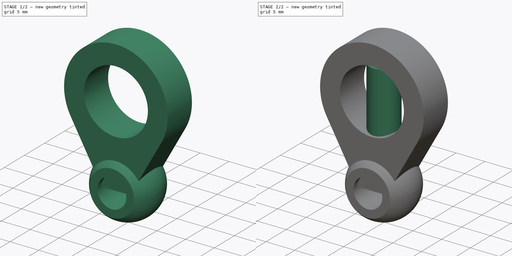
[diagram: build sequence overview — one tinted view per stage of 2, left to right]
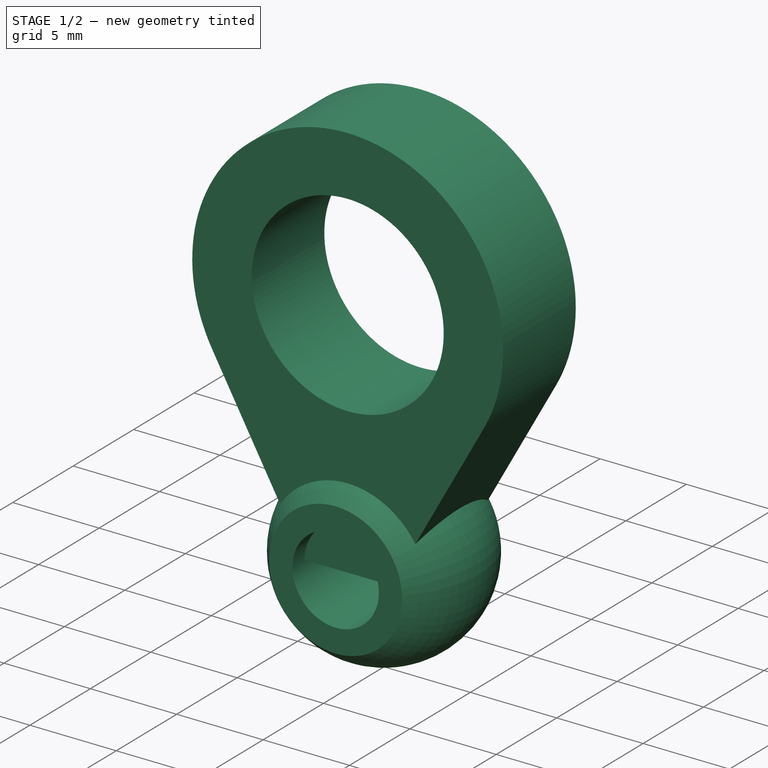
[diagram: stage 1 of 2 — iso view after this stage's code; geometry added in this stage tinted green]
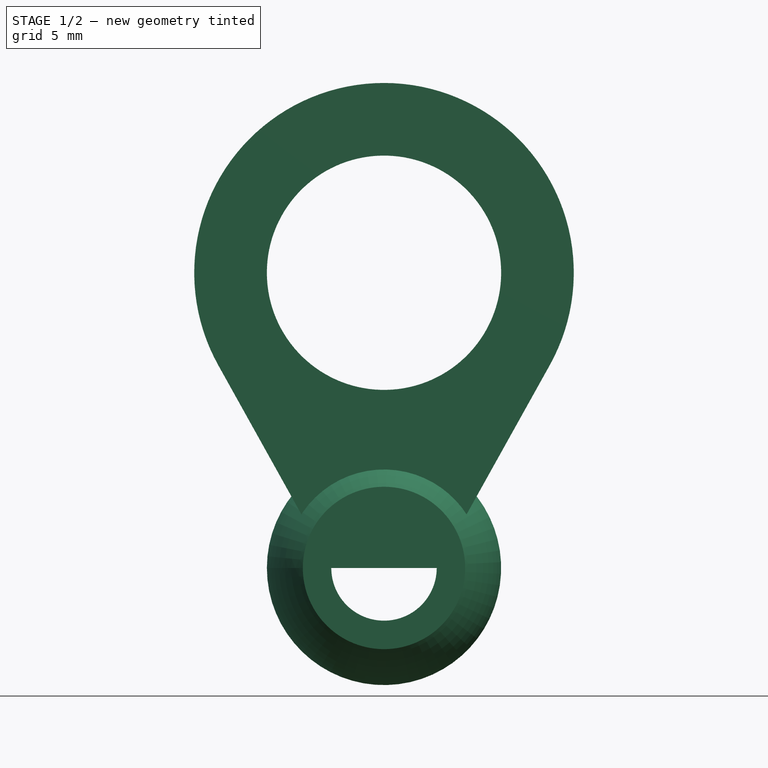
[diagram: stage 1 of 2 — front view after this stage's code; geometry added in this stage tinted green]
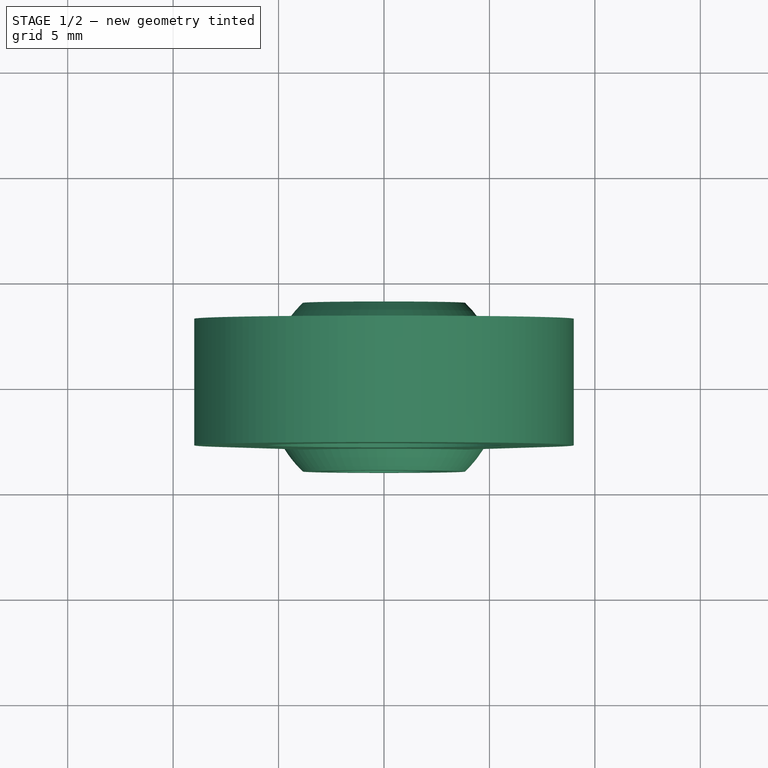
[diagram: stage 1 of 2 — top view after this stage's code; geometry added in this stage tinted green]
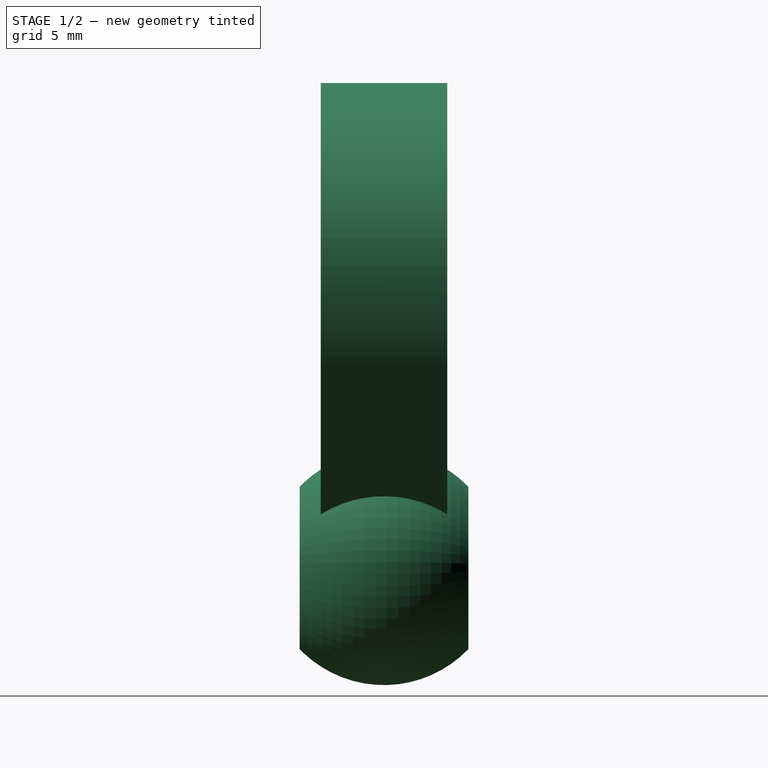
[diagram: stage 1 of 2 — right view after this stage's code; geometry added in this stage tinted green]
FCSTD DOCUMENT  (FreeCAD 0.19R24267 +99 (Git))
Label: Embout à rotule mâle DIN ISO 12240-4 Paramterique
License: All rights reserved
LicenseURL: http://en.wikipedia.org/wiki/All_rights_reserved
objects: Sketcher::SketchObject×2, PartDesign::Body×2, Spreadsheet::Sheet×1, Part::Cylinder×1, PartDesign::Pad×1, PartDesign::Revolution×1, App::Part×1
note: 9 computed .brp shape members not serialized (recipe doc carries the construction recipe); baked Part::Feature solids carry a one-line shape summary decoded from their .brp

FEATURE [Sketcher::SketchObject] Sketch012
  FullyConstrained = true
  MapMode = 5
  Placement = pos=(0,0,0) rot=(1,0,0;1.5708rad)
  Support = -> [XZ_Plane020]
  expr: Constraints[11] = <<DIN ISO 12240-010>>.VAL_dk / 2
  expr: Constraints[9] = <<DIN ISO 12240-010>>.VAL_d3
  expr: Constraints[8] = <<DIN ISO 12240-010>>.VAL_h - <<DIN ISO 12240-010>>.VAL_L1
  expr: Constraints[7] = <<DIN ISO 12240-010>>.VAL_d2 / 2
  sketch-geometry (5):
    g0: LineSegment StartX=-2.5 StartY=0 StartZ=0 EndX=2.5 EndY=0 EndZ=0
    g1: ArcOfCircle CenterX=0 CenterY=14 CenterZ=0 NormalX=0 NormalY=0 NormalZ=1 AngleXU=0 Radius=9 StartAngle=5.77467 EndAngle=9.93329
    g2: LineSegment StartX=-7.86122 StartY=9.61807 StartZ=0 EndX=-2.5 EndY=0 EndZ=0
    g3: LineSegment StartX=7.86122 StartY=9.61807 StartZ=0 EndX=2.5 EndY=0 EndZ=0
    g4: Circle CenterX=0 CenterY=14 CenterZ=0 NormalX=0 NormalY=0 NormalZ=1 AngleXU=0 Radius=5.556
  constraints (12):
    c: PointOnObject(g0,g-1)
    c: PointOnObject(g1,g-2)
    c: Coincident(g2,g0)
    c: Coincident(g3,g0)
    c: Tangent(g3,g1) = 1.5708
    c: Tangent(g2,g1) = -1.5708
    c: Symmetric(g0,g0,g-2)
    c: Radius(g1) = 9
    c: DistanceY(g0,g1) = 14
    c: DistanceX(g0,g0) = 5
    c: Coincident(g4,g1)
    c: Radius(g4) = 5.556
FEATURE [Sketcher::SketchObject] Sketch013
  FullyConstrained = true
  MapMode = 5
  Support = -> [XY_Plane019]
  expr: Constraints[13] = <<DIN ISO 12240-010>>.VAL_d1 / 2
  expr: Constraints[12] = <<DIN ISO 12240-010>>.VAL_dk / 2
  expr: Constraints[9] = <<DIN ISO 12240-010>>.VAL_B
  expr: Constraints[8] = <<DIN ISO 12240-010>>.VAL_d / 2
  sketch-geometry (5):
    g0: LineSegment StartX=-3.85 StartY=4 StartZ=0 EndX=-2.5 EndY=4 EndZ=0
    g1: LineSegment StartX=-2.5 StartY=4 StartZ=0 EndX=-2.5 EndY=-4 EndZ=0
    g2: LineSegment StartX=-2.5 StartY=-4 StartZ=0 EndX=-3.85 EndY=-4 EndZ=0
    g3: ArcOfCircle CenterX=-0.0136682 CenterY=0 CenterZ=0 NormalX=0 NormalY=0 NormalZ=1 AngleXU=0 Radius=5.54233 StartAngle=2.33531 EndAngle=3.94787
    g4: GeomPoint X=-5.556 Y=0 Z=0
  constraints (14):
    c: Horizontal(g0)
    c: Coincident(g0,g1)
    c: Coincident(g1,g2)
    c: Horizontal(g2)
    c: PointOnObject(g3,g-1)
    c: Coincident(g3,g0)
    c: Coincident(g3,g2)
    c: Symmetric(g0,g1,g-1)
    c: DistanceX(g1,g-1) = 2.5
    c: DistanceY(g2,g0) = 8
    c: PointOnObject(g4,g3)
    c: PointOnObject(g4,g-1)
    c: DistanceX(g4,g-1) = 5.556
    c: DistanceX(g2,g-1) = 3.85
FEATURE [PartDesign::Pad] Pad006
  Direction = (1,1,1)
  Length = 6
  Length2 = 100
  Midplane = true
  Placement = pos=(0,0,0) rot=(1,0,0;1.5708rad)
  Profile = -> Sketch012
  Type = 0
  expr: Length = <<DIN ISO 12240-010>>.VAL_C1
FEATURE [PartDesign::Body] Body013
  Group = -> [Sketch012,Pad006]
  Origin = -> Origin019
  Placement = pos=(0,0,19) rot=(0,0,1;0rad)
  Tip = -> Pad006
  expr: .Placement.Base.z = <<DIN ISO 12240-010>>.VAL_L1
FEATURE [PartDesign::Revolution] Revolution006
  Angle = 360
  Axis = (0,1,0)
  Base = (0,0,0)
  Profile = -> Sketch013
  ReferenceAxis = -> Sketch013 [V_Axis]
FEATURE [PartDesign::Body] Body012
  Group = -> [Sketch013,Revolution006]
  Origin = -> Origin018
  Placement = pos=(0,0,33) rot=(0,0,1;0rad)
  Tip = -> Revolution006
  expr: .Placement.Base.z = <<DIN ISO 12240-010>>.VAL_h
FEATURE [App::Part] Part006  label="CMM.00.05/RH"
  Group = -> [Spreadsheet006,Cylinder006,Body013,Body012]
  Origin = -> Origin020
  Placement = pos=(213,0,0) rot=(0,0,1;0rad)
  expr: Label = <<DIN ISO 12240-010>>.REF
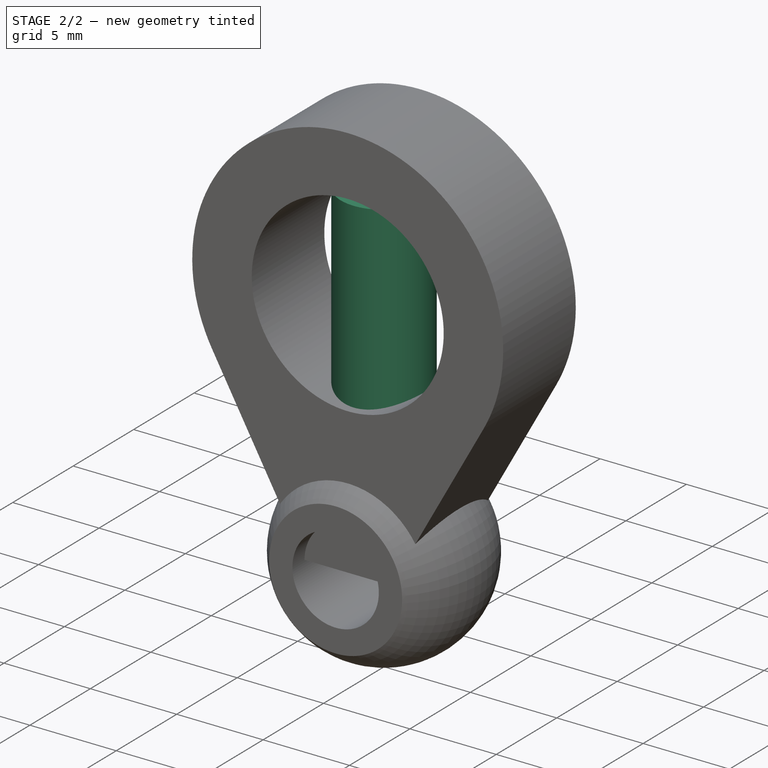
[diagram: stage 2 of 2 — iso view after this stage's code; geometry added in this stage tinted green]
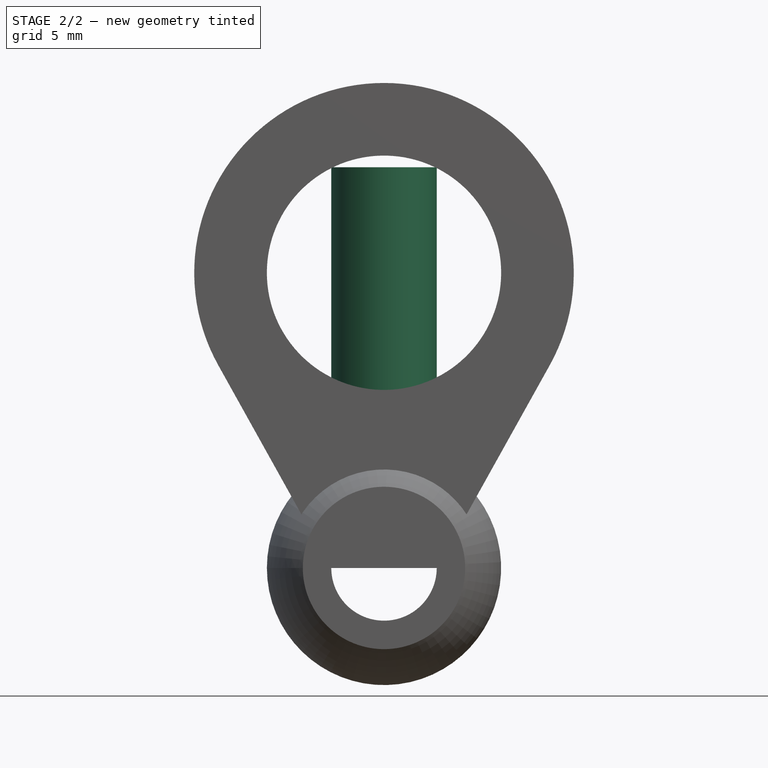
[diagram: stage 2 of 2 — front view after this stage's code; geometry added in this stage tinted green]
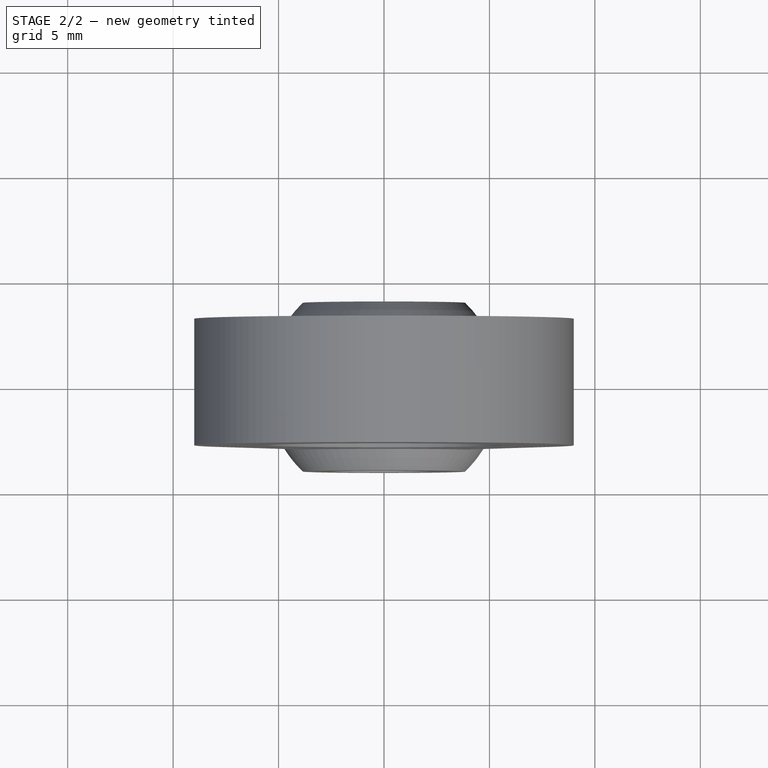
[diagram: stage 2 of 2 — top view after this stage's code; geometry added in this stage tinted green]
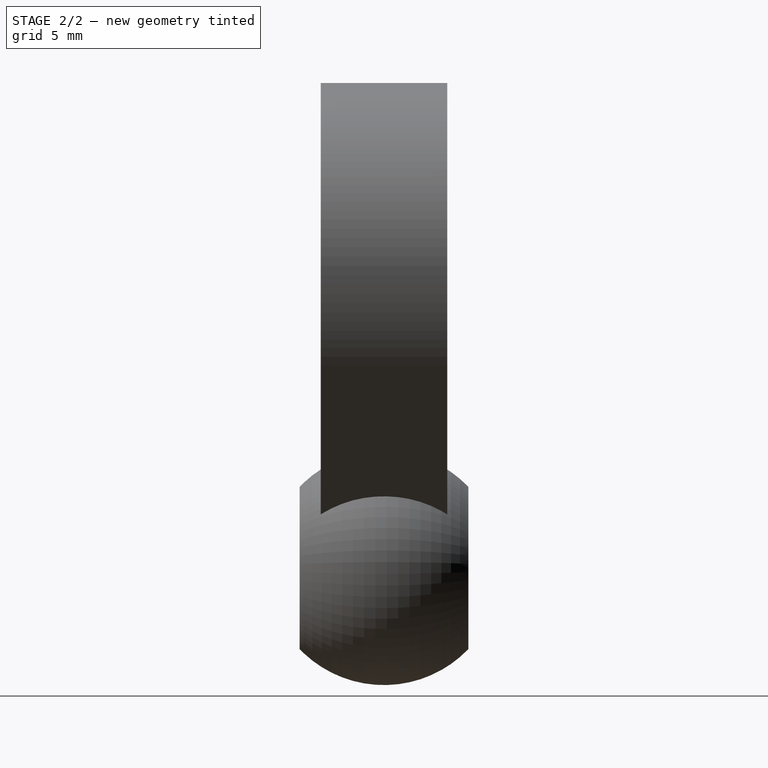
[diagram: stage 2 of 2 — right view after this stage's code; geometry added in this stage tinted green]
FEATURE [Spreadsheet::Sheet] Spreadsheet006  label="DIN ISO 12240-010"
  cells = A1=Choix; B1=d; C1=d3; D1=d2; E1=B; F1=C1; G1=L2; H1=d1; I1=h; J1=L1; K1=dk; A2(REF)=CMM.00.05/RH; B2(VAL_d)=5; C2(VAL_d3)=5; D2(VAL_d2)=18; E2(VAL_B)=8; F2(VAL_C1)=6; G2(VAL_L2)=42; H2(VAL_d1)=7.7; I2(VAL_h)=33; J2(VAL_L1)=19; K2(VAL_dk)=11.112; A3=Ref; B3=d; C3=d3; D3=d2; E3=B; F3=C1; G3=L2; H3=d1; I3=h; J3=L1; K3=dk; A4=CMM.00.05/RH; B4=5; C4=5; D4=18; E4=8; F4=6; G4=42; H4=7.7; I4=33; J4=19; K4=11.112; A5=CMM.00.06/RH; B5=6; C5=6; D5=20; E5=9; F5=6.75; G5=46; H5=8.9; I5=36; J5=21; K5=12.7; A6=CMM.00.08/RH; B6=8; C6=8; D6=24; E6=12; F6=9; G6=54; H6=10.4; I6=42; J6=25; K6=15.875; A7=CMM.00.10/RH; B7=10; C7=10; D7=28; E7=14; F7=10.5; G7=62; H7=12.9; I7=48; J7=28; K7=19.05; A8=CMM.00.12/RH; B8=12; C8=12; D8=32; E8=16; F8=12; G8=70; H8=15.4; I8=54; J8=32; K8=22.225; A9=CMM.00.16/RH; B9=16; C9=13; D9=42; E9=21; F9=15; G9=84; H9=19.3; I9=66; J9=37; K9=28.575; A10=CMM.00.20/RH; B10=20; C10=20; D10=50; E10=25; F10=18; G10=103; H10=24.3; I10=78; J10=45; K10=34.925; A11=CMM.00.05/LH; B11=5; C11=5; D11=18; E11=8; F11=6; G11=42; H11=7.7; I11=33; J11=19; K11=11.112; A12=CMM.00.06/LH; B12=6; C12=6; D12=20; E12=9; F12=6.75; G12=46; H12=8.9; I12=36; J12=21; K12=12.7; A13=CMM.00.08/LH; B13=8; C13=8; D13=24; E13=12; F13=9; G13=54; H13=10.4; I13=42; J13=25; K13=15.875; A14=CMM.00.10/LH; B14=10; C14=10; D14=28; E14=14; F14=10.5; G14=62; H14=12.9; I14=48; J14=28; K14=19.05; A15=CMM.00.12/LH; B15=12; C15=12; D15=32; E15=16; F15=12; G15=70; H15=15.4; I15=54; J15=32; K15=22.225; A16=CMM.00.16/LH; B16=16; C16=13; D16=42; E16=21; F16=15; G16=84; H16=19.3; I16=66; J16=37; K16=28.575
FEATURE [Part::Cylinder] Cylinder006  label="Cylindre006"
  Angle = 360
  AttacherType = Attacher::AttachEngine3D
  Height = 19
  Radius = 2.5
  expr: Height = <<DIN ISO 12240-010>>.VAL_L1
  expr: Radius = <<DIN ISO 12240-010>>.VAL_d3 / 2
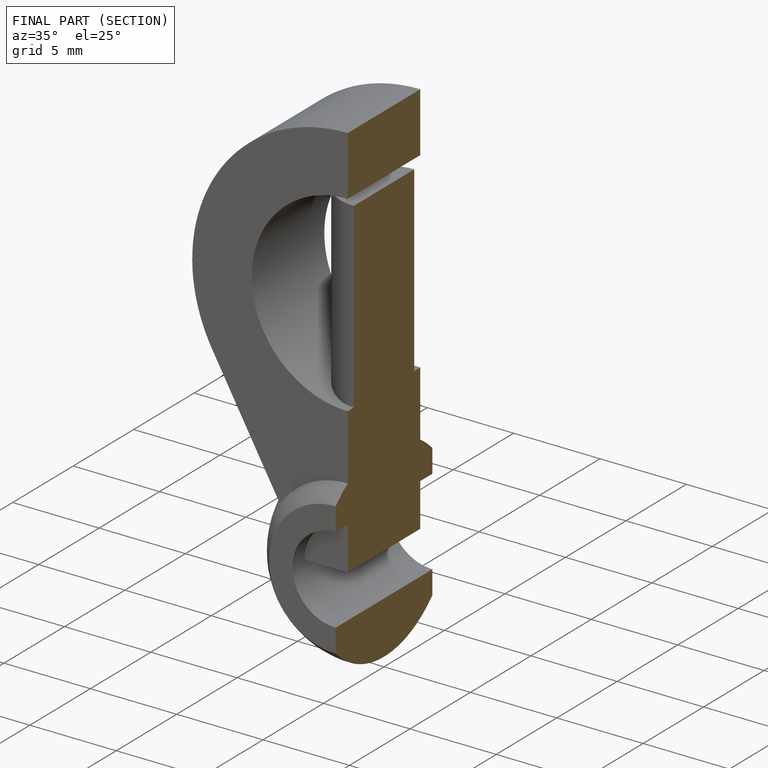
[diagram: finished part — half-section view (interior)]
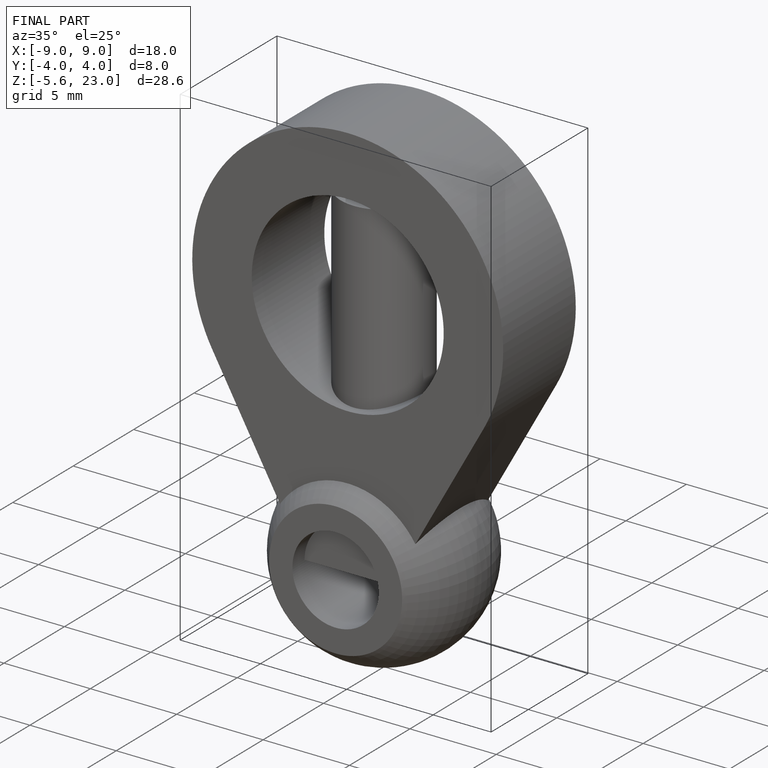
[diagram: finished part — iso view with bounding-box wireframe]
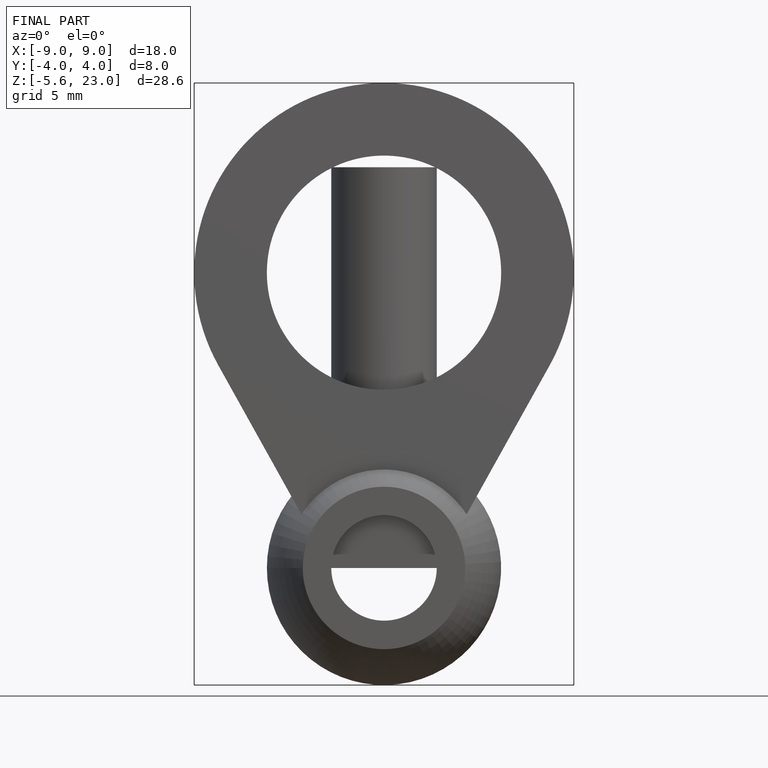
[diagram: finished part — front view with bounding-box wireframe]
